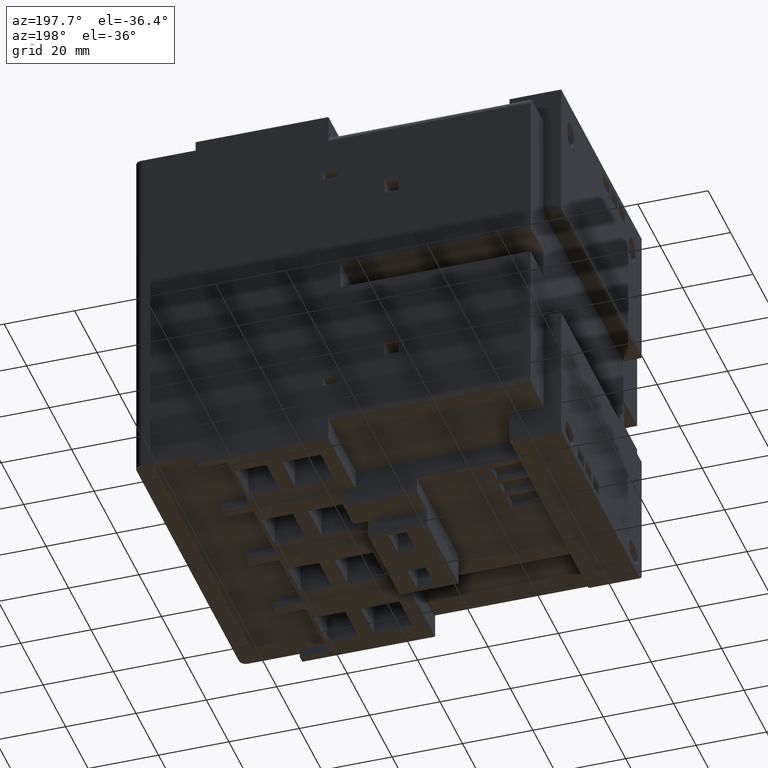
[diagram: clean part render]
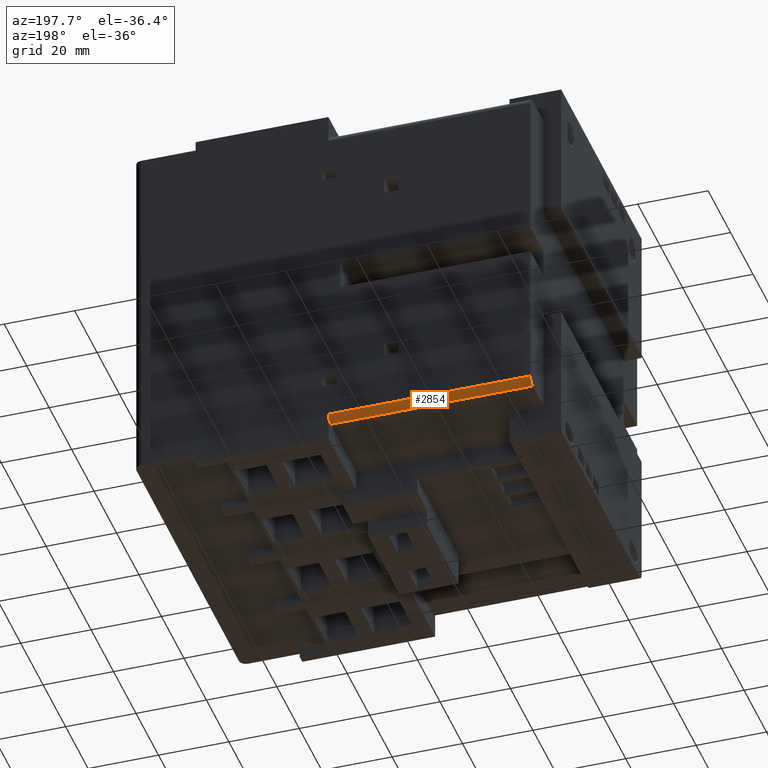
[diagram: same view with one face highlighted and labeled with its STEP entity id]
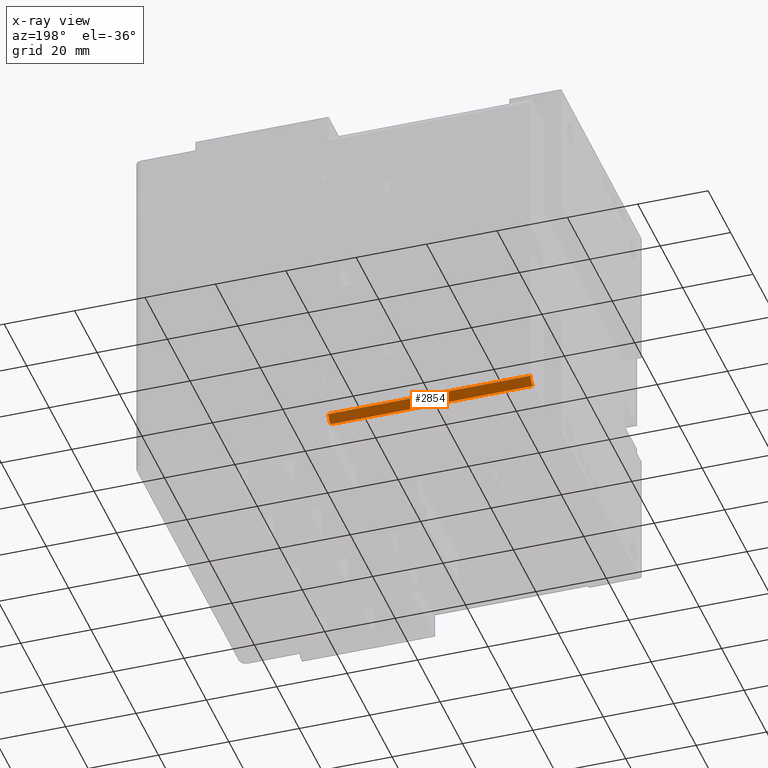
[diagram: x-ray of the same camera — body ghosted, the highlighted face saturated]
A machine part, auxiliary view. The second image highlights one B-rep face of the part: STEP entity #2854.
The next image is the same camera in x-ray: the body ghosted, the highlighted face saturated — about 0% of this face is hidden behind the body in this view.
In plain terms, the highlighted cylindrical surface (edge-blend (fillet) strip) has radius 2 mm, axis along (1, -0, -0).
Its self-contained STEP definition (entity closure, byte-faithful):
#2237=CYLINDRICAL_SURFACE('',#11233,2.);
#2254=CIRCLE('',#10764,2.);
#2311=CIRCLE('',#11115,2.);
#2854=ADVANCED_FACE('',(#3638),#2237,.T.);
#3638=FACE_OUTER_BOUND('',#4147,.T.);
#4147=EDGE_LOOP('',(#6355,#6356,#6357,#6358));
#6355=ORIENTED_EDGE('',*,*,#8096,.F.);
#6356=ORIENTED_EDGE('',*,*,#8097,.F.);
#6357=ORIENTED_EDGE('',*,*,#7236,.F.);
#6358=ORIENTED_EDGE('',*,*,#7360,.F.);
#6475=VERTEX_POINT('',#13485);
#6476=VERTEX_POINT('',#13487);
#6593=VERTEX_POINT('',#13731);
#7078=VERTEX_POINT('',#15242);
#7236=EDGE_CURVE('',#6475,#6476,#2254,.T.);
#7360=EDGE_CURVE('',#6593,#6475,#8461,.T.);
#8096=EDGE_CURVE('',#7078,#6593,#2311,.T.);
#8097=EDGE_CURVE('',#6476,#7078,#9146,.T.);
#8461=LINE('',#13732,#9507);
#9146=LINE('',#15245,#10192);
#9507=VECTOR('',#11512,1.);
#10192=VECTOR('',#12883,1.);
#10764=AXIS2_PLACEMENT_3D('',#13486,#11374,#11375);
#11115=AXIS2_PLACEMENT_3D('',#15243,#12879,#12880);
#11233=AXIS2_PLACEMENT_3D('',#15586,#13275,#13276);
#11374=DIRECTION('',(0.,0.,-1.));
#11375=DIRECTION('',(-1.,0.,0.));
#11512=DIRECTION('',(0.,0.,-1.));
#12879=DIRECTION('',(5.33761069531325E-016,-3.08258280937682E-017,1.));
#12880=DIRECTION('',(-1.,0.,0.));
#12883=DIRECTION('',(0.,0.,1.));
#13275=DIRECTION('',(0.,0.,1.));
#13276=DIRECTION('',(1.,0.,0.));
#13485=CARTESIAN_POINT('',(-47.5,45.9,0.));
#13486=CARTESIAN_POINT('',(-45.5,45.9,0.));
#13487=CARTESIAN_POINT('',(-45.5,47.9,3.24904228108317E-015));
#13731=CARTESIAN_POINT('',(-47.5,45.9,57.4));
#13732=CARTESIAN_POINT('',(-47.5,45.9,0.));
#15242=CARTESIAN_POINT('',(-45.5,47.9,57.4000000000094));
#15243=CARTESIAN_POINT('',(-45.5,45.9,57.4000000000094));
#15245=CARTESIAN_POINT('',(-45.5,47.9,57.4));
#15586=CARTESIAN_POINT('',(-45.5,45.9,0.));